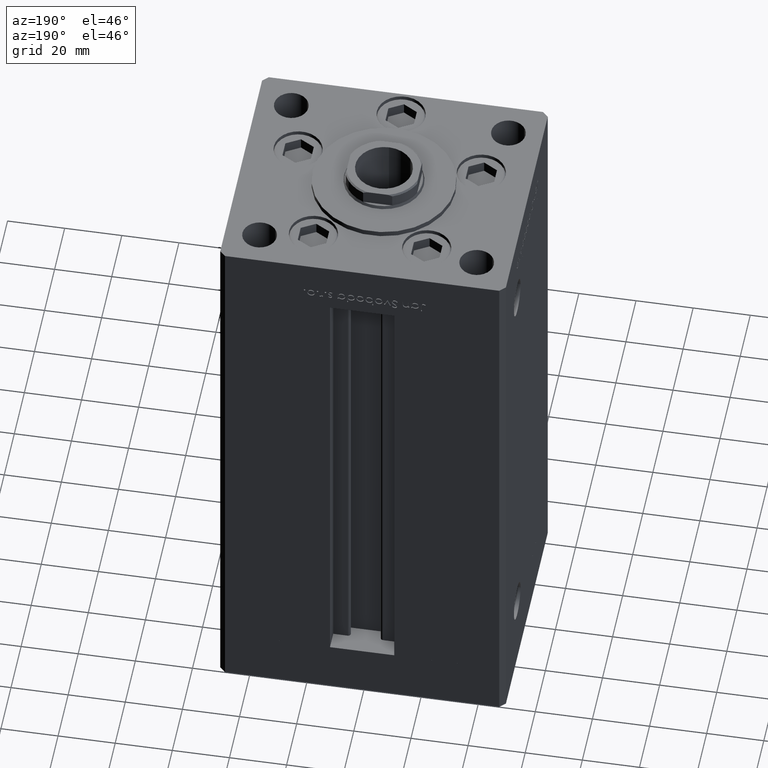
[diagram: clean part render]
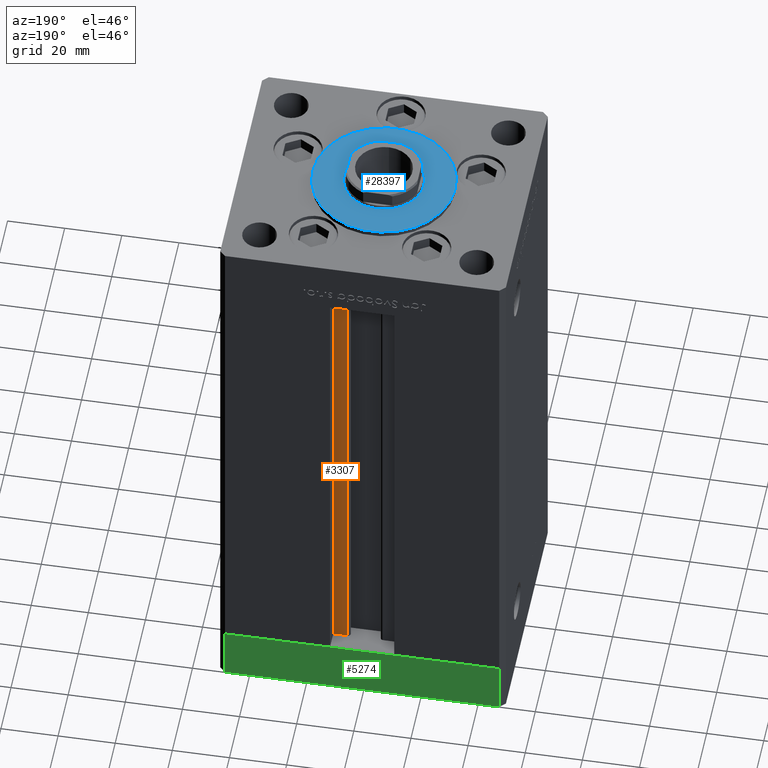
[diagram: same view with three faces highlighted in distinct colors, each labeled with its STEP entity id]
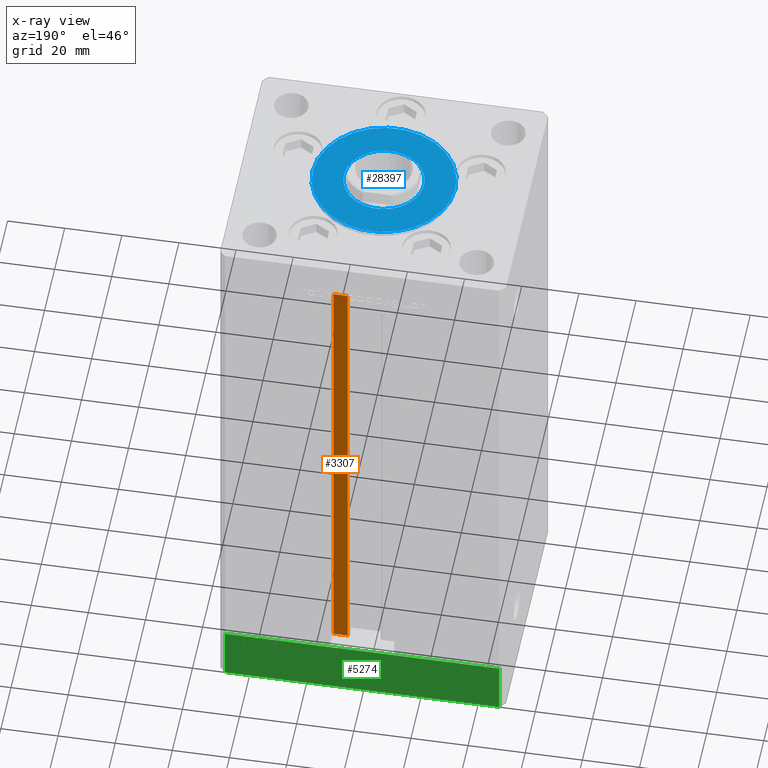
[diagram: x-ray of the same camera — body ghosted, the three highlighted faces saturated]
A machine part, auxiliary view with three faces highlighted in distinct colors.
The next image is the same camera in x-ray (body ghosted, the three faces saturated) — at least one of them is partly hidden behind the body in this view.
Their STEP definitions:

[orange] entity #3307 — the highlighted planar face has unit normal (0, -1, 0).
#2563 = CARTESIAN_POINT ( 'NONE',  ( 6.183333333333997928, 36.99999999999999289, 0.000000000000000000 ) ) ;
#3307 = ADVANCED_FACE ( 'NONE', ( #42956 ), #6996, .F. ) ;
#5272 = DIRECTION ( 'NONE',  ( -0.000000000000000000, -0.000000000000000000, 1.000000000000000000 ) ) ;
#5914 = EDGE_CURVE ( 'NONE', #32382, #21076, #13612, .T. ) ;
#6996 = PLANE ( 'NONE',  #12367 ) ;
#12199 = VECTOR ( 'NONE', #5272, 1000.000000000000000 ) ;
#12367 = AXIS2_PLACEMENT_3D ( 'NONE', #23017, #15915, #43986 ) ;
#13612 = LINE ( 'NONE', #2563, #17473 ) ;
#13628 = DIRECTION ( 'NONE',  ( -0.000000000000000000, -0.000000000000000000, 1.000000000000000000 ) ) ;
#14172 = LINE ( 'NONE', #49114, #12199 ) ;
#14363 = CARTESIAN_POINT ( 'NONE',  ( 0.000000000000000000, 36.99999999999999289, 168.5000000000000000 ) ) ;
#14436 = VECTOR ( 'NONE', #13628, 1000.000000000000000 ) ;
#15419 = CARTESIAN_POINT ( 'NONE',  ( 11.24999999999999822, 36.99999999999999289, 0.000000000000000000 ) ) ;
#15915 = DIRECTION ( 'NONE',  ( 0.000000000000000000, -1.000000000000000000, 0.000000000000000000 ) ) ;
#16419 = VERTEX_POINT ( 'NONE', #19846 ) ;
#17473 = VECTOR ( 'NONE', #33817, 1000.000000000000000 ) ;
#17508 = CARTESIAN_POINT ( 'NONE',  ( 11.24999999999999822, 36.99999999999999289, 168.5000000000000000 ) ) ;
#19774 = EDGE_LOOP ( 'NONE', ( #45204, #41129, #40758, #26696 ) ) ;
#19846 = CARTESIAN_POINT ( 'NONE',  ( 6.183333333333997928, 36.99999999999999289, 168.5000000000000000 ) ) ;
#21076 = VERTEX_POINT ( 'NONE', #15419 ) ;
#23017 = CARTESIAN_POINT ( 'NONE',  ( 6.183333333333997928, 36.99999999999999289, 0.000000000000000000 ) ) ;
#26696 = ORIENTED_EDGE ( 'NONE', *, *, #40592, .F. ) ;
#28622 = EDGE_CURVE ( 'NONE', #32382, #16419, #29891, .T. ) ;
#29891 = LINE ( 'NONE', #41952, #14436 ) ;
#30123 = DIRECTION ( 'NONE',  ( -1.000000000000000000, 0.000000000000000000, 0.000000000000000000 ) ) ;
#30141 = CARTESIAN_POINT ( 'NONE',  ( 6.183333333333997928, 36.99999999999999289, 0.000000000000000000 ) ) ;
#32382 = VERTEX_POINT ( 'NONE', #30141 ) ;
#33817 = DIRECTION ( 'NONE',  ( 1.000000000000000000, 0.000000000000000000, 0.000000000000000000 ) ) ;
#40592 = EDGE_CURVE ( 'NONE', #48503, #16419, #45858, .T. ) ;
#40758 = ORIENTED_EDGE ( 'NONE', *, *, #28622, .T. ) ;
#41129 = ORIENTED_EDGE ( 'NONE', *, *, #5914, .F. ) ;
#41952 = CARTESIAN_POINT ( 'NONE',  ( 6.183333333333997928, 36.99999999999999289, 0.000000000000000000 ) ) ;
#42956 = FACE_OUTER_BOUND ( 'NONE', #19774, .T. ) ;
#43986 = DIRECTION ( 'NONE',  ( 0.000000000000000000, -0.000000000000000000, -1.000000000000000000 ) ) ;
#44439 = EDGE_CURVE ( 'NONE', #21076, #48503, #14172, .T. ) ;
#45204 = ORIENTED_EDGE ( 'NONE', *, *, #44439, .F. ) ;
#45744 = VECTOR ( 'NONE', #30123, 1000.000000000000000 ) ;
#45858 = LINE ( 'NONE', #14363, #45744 ) ;
#48503 = VERTEX_POINT ( 'NONE', #17508 ) ;
#49114 = CARTESIAN_POINT ( 'NONE',  ( 11.24999999999999822, 36.99999999999999289, 0.000000000000000000 ) ) ;

[blue] entity #28397 — the highlighted planar face has unit normal (0, 0, 1).
#1567 = VERTEX_POINT ( 'NONE', #23362 ) ;
#2551 = DIRECTION ( 'NONE',  ( 1.000000000000000000, 0.000000000000000000, 0.000000000000000000 ) ) ;
#2573 = EDGE_CURVE ( 'NONE', #5200, #18498, #51759, .T. ) ;
#2650 = FACE_BOUND ( 'NONE', #8872, .T. ) ;
#3593 = DIRECTION ( 'NONE',  ( 0.000000000000000000, 0.000000000000000000, 1.000000000000000000 ) ) ;
#4539 = CARTESIAN_POINT ( 'NONE',  ( 0.000000000000000000, -6.938893903907228378E-15, 2.000000000000000000 ) ) ;
#5200 = VERTEX_POINT ( 'NONE', #47623 ) ;
#5806 = PLANE ( 'NONE',  #50489 ) ;
#8432 = CIRCLE ( 'NONE', #42793, 25.00000000000000000 ) ;
#8774 = AXIS2_PLACEMENT_3D ( 'NONE', #27239, #3593, #2551 ) ;
#8872 = EDGE_LOOP ( 'NONE', ( #20655, #10302 ) ) ;
#9747 = DIRECTION ( 'NONE',  ( 0.000000000000000000, 0.000000000000000000, 1.000000000000000000 ) ) ;
#9828 = EDGE_LOOP ( 'NONE', ( #37423, #46031 ) ) ;
#10302 = ORIENTED_EDGE ( 'NONE', *, *, #37441, .F. ) ;
#14013 = VERTEX_POINT ( 'NONE', #31840 ) ;
#16010 = CIRCLE ( 'NONE', #32805, 25.00000000000000000 ) ;
#16881 = DIRECTION ( 'NONE',  ( 0.000000000000000000, 0.000000000000000000, 1.000000000000000000 ) ) ;
#17784 = EDGE_CURVE ( 'NONE', #1567, #14013, #16010, .T. ) ;
#18498 = VERTEX_POINT ( 'NONE', #29798 ) ;
#20655 = ORIENTED_EDGE ( 'NONE', *, *, #2573, .F. ) ;
#21825 = DIRECTION ( 'NONE',  ( 1.000000000000000000, 0.000000000000000000, -0.000000000000000000 ) ) ;
#23362 = CARTESIAN_POINT ( 'NONE',  ( -25.00000000000000000, -6.938893903907228378E-15, 2.000000000000000000 ) ) ;
#24841 = EDGE_CURVE ( 'NONE', #14013, #1567, #8432, .T. ) ;
#25550 = CIRCLE ( 'NONE', #8774, 14.00000000000000000 ) ;
#27239 = CARTESIAN_POINT ( 'NONE',  ( 0.000000000000000000, -6.938893903907228378E-15, 2.000000000000000000 ) ) ;
#28397 = ADVANCED_FACE ( 'NONE', ( #2650, #33640 ), #5806, .T. ) ;
#29798 = CARTESIAN_POINT ( 'NONE',  ( -14.00000000000000000, -5.224388385100933937E-15, 2.000000000000000000 ) ) ;
#29980 = AXIS2_PLACEMENT_3D ( 'NONE', #51228, #50451, #34691 ) ;
#30752 = CARTESIAN_POINT ( 'NONE',  ( 0.000000000000000000, -6.938893903907228378E-15, 2.000000000000000000 ) ) ;
#31840 = CARTESIAN_POINT ( 'NONE',  ( 25.00000000000000000, -3.877276906038844941E-15, 2.000000000000000000 ) ) ;
#32805 = AXIS2_PLACEMENT_3D ( 'NONE', #4539, #16881, #36822 ) ;
#33640 = FACE_OUTER_BOUND ( 'NONE', #9828, .T. ) ;
#34691 = DIRECTION ( 'NONE',  ( 1.000000000000000000, 0.000000000000000000, 0.000000000000000000 ) ) ;
#36822 = DIRECTION ( 'NONE',  ( 1.000000000000000000, 0.000000000000000000, 0.000000000000000000 ) ) ;
#37423 = ORIENTED_EDGE ( 'NONE', *, *, #17784, .T. ) ;
#37441 = EDGE_CURVE ( 'NONE', #18498, #5200, #25550, .T. ) ;
#42124 = CARTESIAN_POINT ( 'NONE',  ( 0.000000000000000000, -6.938893903907228378E-15, 2.000000000000000000 ) ) ;
#42646 = DIRECTION ( 'NONE',  ( 1.000000000000000000, 0.000000000000000000, 0.000000000000000000 ) ) ;
#42793 = AXIS2_PLACEMENT_3D ( 'NONE', #42124, #50806, #42646 ) ;
#46031 = ORIENTED_EDGE ( 'NONE', *, *, #24841, .T. ) ;
#47623 = CARTESIAN_POINT ( 'NONE',  ( 14.00000000000000000, -6.938893903907228378E-15, 2.000000000000000000 ) ) ;
#50451 = DIRECTION ( 'NONE',  ( 0.000000000000000000, 0.000000000000000000, 1.000000000000000000 ) ) ;
#50489 = AXIS2_PLACEMENT_3D ( 'NONE', #30752, #9747, #21825 ) ;
#50806 = DIRECTION ( 'NONE',  ( 0.000000000000000000, 0.000000000000000000, 1.000000000000000000 ) ) ;
#51228 = CARTESIAN_POINT ( 'NONE',  ( 0.000000000000000000, -6.938893903907228378E-15, 2.000000000000000000 ) ) ;
#51759 = CIRCLE ( 'NONE', #29980, 14.00000000000000000 ) ;

[green] entity #5274 — the highlighted planar face has unit normal (0, 1, 0).
#639 = VECTOR ( 'NONE', #33718, 1000.000000000000000 ) ;
#1056 = ORIENTED_EDGE ( 'NONE', *, *, #31883, .F. ) ;
#1151 = DIRECTION ( 'NONE',  ( -1.000000000000000000, -3.614007241618350743E-16, 0.000000000000000000 ) ) ;
#1461 = CARTESIAN_POINT ( 'NONE',  ( -48.00000000000000711, 43.49999999999996447, -19.00000000000000000 ) ) ;
#2494 = CARTESIAN_POINT ( 'NONE',  ( 47.99999999999990763, 43.50000000000000000, -19.00000000000000000 ) ) ;
#3277 = DIRECTION ( 'NONE',  ( 0.000000000000000000, 0.000000000000000000, 1.000000000000000000 ) ) ;
#4121 = DIRECTION ( 'NONE',  ( -1.000000000000000000, -3.614007241618350743E-16, 0.000000000000000000 ) ) ;
#4446 = VECTOR ( 'NONE', #3277, 1000.000000000000000 ) ;
#5274 = ADVANCED_FACE ( 'NONE', ( #48923 ), #37115, .T. ) ;
#8501 = DIRECTION ( 'NONE',  ( -3.614007241618350743E-16, 1.000000000000000000, 0.000000000000000000 ) ) ;
#8799 = LINE ( 'NONE', #45270, #639 ) ;
#9233 = EDGE_CURVE ( 'NONE', #20905, #13126, #23415, .T. ) ;
#12547 = ORIENTED_EDGE ( 'NONE', *, *, #9233, .F. ) ;
#13126 = VERTEX_POINT ( 'NONE', #22928 ) ;
#16206 = CARTESIAN_POINT ( 'NONE',  ( 47.99999999999990763, 43.50000000000000000, -19.00000000000000000 ) ) ;
#18254 = LINE ( 'NONE', #2494, #4446 ) ;
#20854 = CARTESIAN_POINT ( 'NONE',  ( 47.99999999999990763, 43.50000000000000000, -19.00000000000000000 ) ) ;
#20905 = VERTEX_POINT ( 'NONE', #20987 ) ;
#20987 = CARTESIAN_POINT ( 'NONE',  ( 47.99999999999990763, 43.50000000000000000, 0.000000000000000000 ) ) ;
#21227 = VERTEX_POINT ( 'NONE', #1461 ) ;
#22928 = CARTESIAN_POINT ( 'NONE',  ( -48.00000000000000711, 43.49999999999996447, 0.000000000000000000 ) ) ;
#22941 = VECTOR ( 'NONE', #4121, 1000.000000000000000 ) ;
#23202 = ORIENTED_EDGE ( 'NONE', *, *, #49550, .T. ) ;
#23347 = VERTEX_POINT ( 'NONE', #43374 ) ;
#23415 = LINE ( 'NONE', #31554, #36874 ) ;
#28542 = LINE ( 'NONE', #16206, #22941 ) ;
#31554 = CARTESIAN_POINT ( 'NONE',  ( 47.99999999999990763, 43.50000000000000000, 0.000000000000000000 ) ) ;
#31883 = EDGE_CURVE ( 'NONE', #23347, #20905, #18254, .T. ) ;
#32576 = ORIENTED_EDGE ( 'NONE', *, *, #32589, .T. ) ;
#32589 = EDGE_CURVE ( 'NONE', #23347, #21227, #28542, .T. ) ;
#33718 = DIRECTION ( 'NONE',  ( 0.000000000000000000, 0.000000000000000000, 1.000000000000000000 ) ) ;
#36874 = VECTOR ( 'NONE', #43353, 1000.000000000000000 ) ;
#37115 = PLANE ( 'NONE',  #51839 ) ;
#43353 = DIRECTION ( 'NONE',  ( -1.000000000000000000, -3.614007241618350743E-16, 0.000000000000000000 ) ) ;
#43374 = CARTESIAN_POINT ( 'NONE',  ( 47.99999999999990763, 43.50000000000000000, -19.00000000000000000 ) ) ;
#45270 = CARTESIAN_POINT ( 'NONE',  ( -48.00000000000000711, 43.49999999999996447, -19.00000000000000000 ) ) ;
#48923 = FACE_OUTER_BOUND ( 'NONE', #49059, .T. ) ;
#49059 = EDGE_LOOP ( 'NONE', ( #12547, #1056, #32576, #23202 ) ) ;
#49550 = EDGE_CURVE ( 'NONE', #21227, #13126, #8799, .T. ) ;
#51839 = AXIS2_PLACEMENT_3D ( 'NONE', #20854, #8501, #1151 ) ;